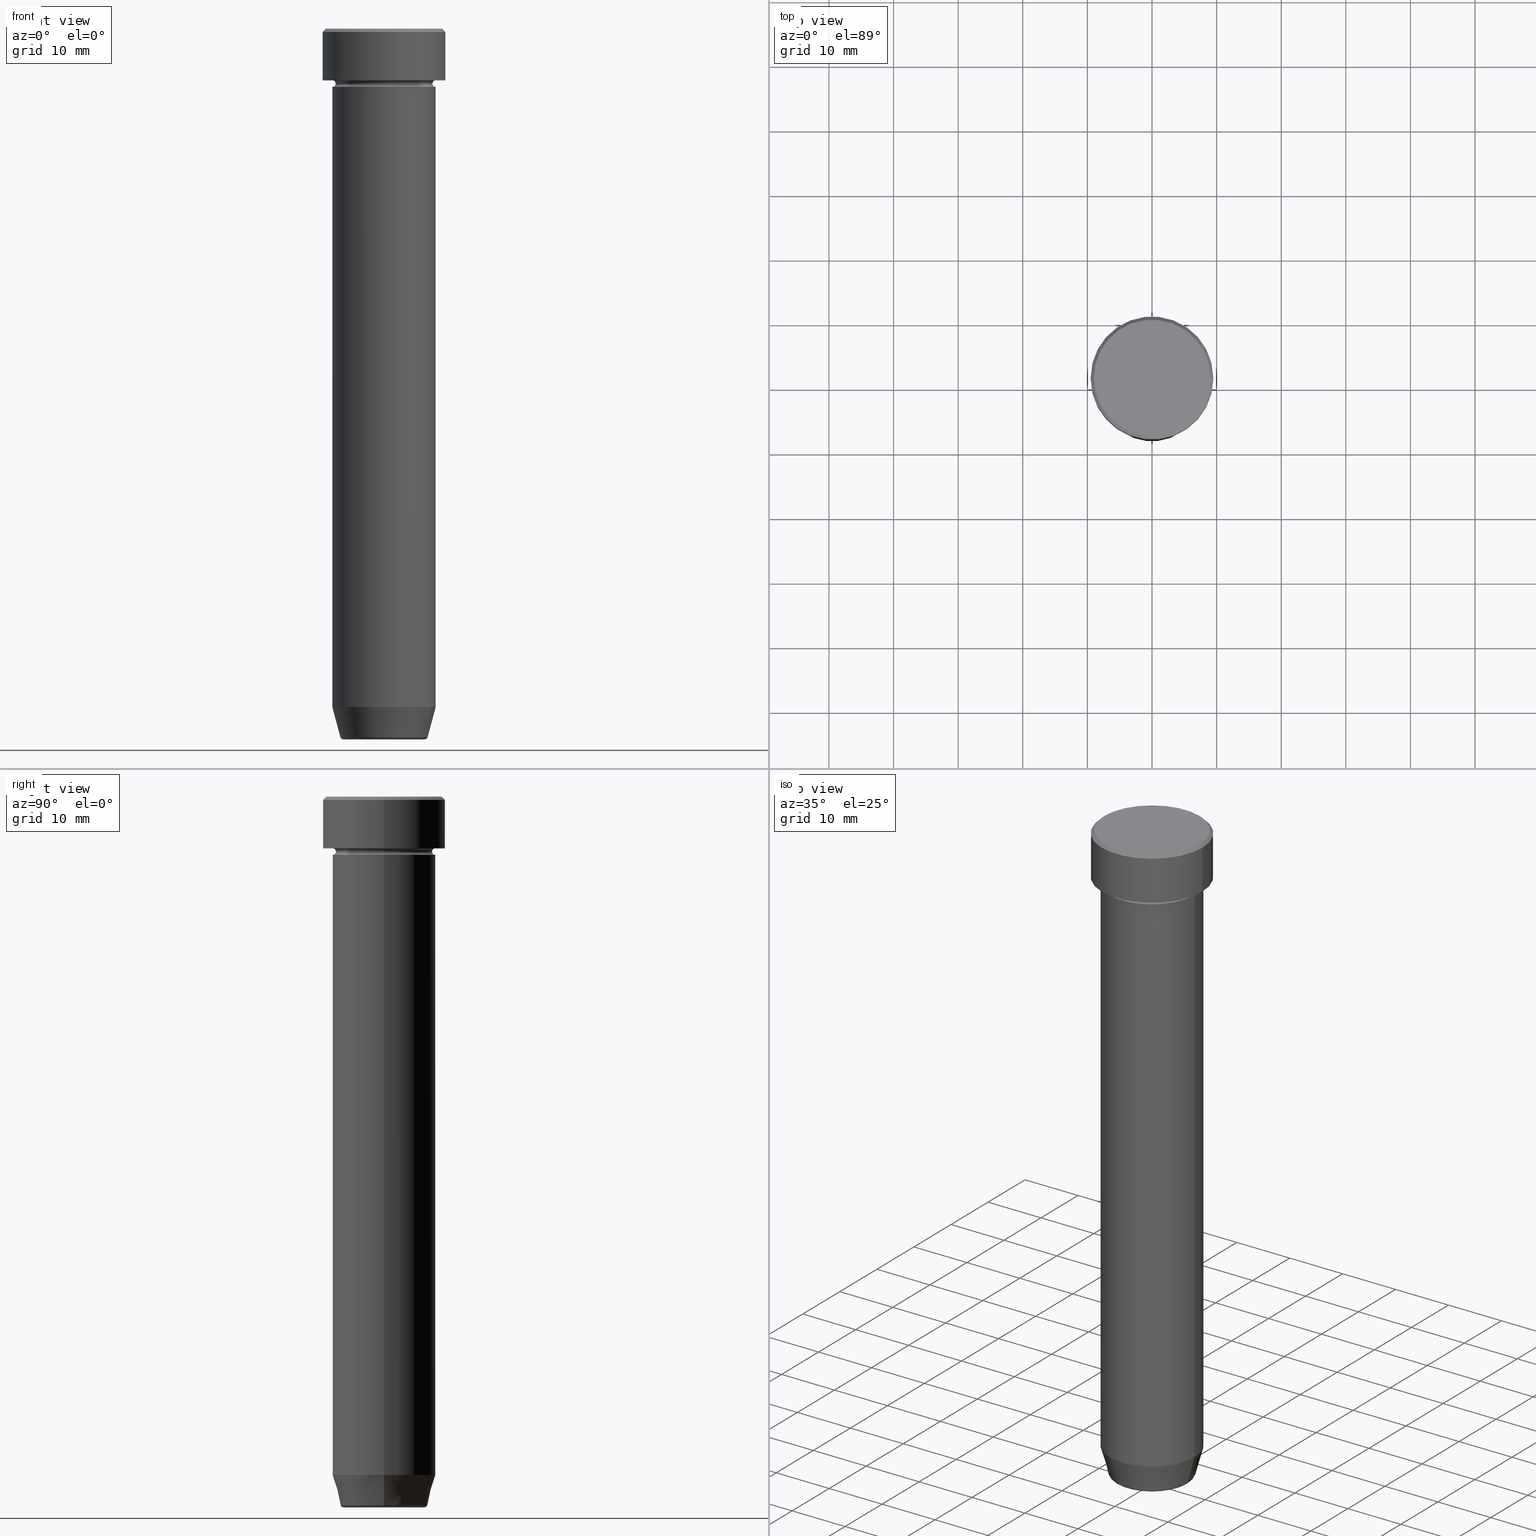
[diagram: canonical four-view strip — front | top / right | iso, engineering-drawing reading convention]
A machine part, canonical four-view strip (front | top / right | iso — engineering-drawing reading convention). The complete STEP part file that produces these views, byte-faithful:
ISO-10303-21;
HEADER;
FILE_DESCRIPTION (( 'STEP AP203' ),
    '1' );
FILE_NAME ('f5d0.STEP',
    '2024-01-02T22:11:47',
    ( '' ),
    ( '' ),
    'SwSTEP 2.0',
    'SolidWorks 2019',
    '' );
FILE_SCHEMA (( 'CONFIG_CONTROL_DESIGN' ));
ENDSEC;

DATA;
#1 = DIRECTION ( 'NONE',  ( -0.000000000000000000, -0.000000000000000000, 1.000000000000000000 ) ) ;
#2 = EDGE_CURVE ( 'NONE', #389, #199, #178, .T. ) ;
#3 = CALENDAR_DATE ( 2024, 2, 1 ) ;
#4 = DIRECTION ( 'NONE',  ( 1.000000000000000000, 0.000000000000000000, 0.000000000000000000 ) ) ;
#5 = AXIS2_PLACEMENT_3D ( 'NONE', #343, #31, #126 ) ;
#6 = AXIS2_PLACEMENT_3D ( 'NONE', #332, #390, #245 ) ;
#7 = APPROVAL_DATE_TIME ( #460, #14 ) ;
#8 = CC_DESIGN_PERSON_AND_ORGANIZATION_ASSIGNMENT ( #270, #493, ( #402 ) ) ;
#9 = ORIENTED_EDGE ( 'NONE', *, *, #324, .F. ) ;
#10 = ORIENTED_EDGE ( 'NONE', *, *, #515, .T. ) ;
#11 = FACE_OUTER_BOUND ( 'NONE', #244, .T. ) ;
#12 = VERTEX_POINT ( 'NONE', #581 ) ;
#13 = DIRECTION ( 'NONE',  ( 1.000000000000000000, 0.000000000000000000, 0.000000000000000000 ) ) ;
#14 = APPROVAL ( #132, 'NEUR�EN�' ) ;
#15 = CIRCLE ( 'NONE', #95, 0.5000000000000004441 ) ;
#16 = ORIENTED_EDGE ( 'NONE', *, *, #231, .F. ) ;
#17 = DIRECTION ( 'NONE',  ( 1.000000000000000000, 0.000000000000000000, 0.000000000000000000 ) ) ;
#18 = ORIENTED_EDGE ( 'NONE', *, *, #94, .F. ) ;
#19 = PLANE ( 'NONE',  #304 ) ;
#20 = ORIENTED_EDGE ( 'NONE', *, *, #449, .F. ) ;
#21 = ADVANCED_FACE ( 'NONE', ( #130 ), #594, .T. ) ;
#22 = DIRECTION ( 'NONE',  ( -1.224646799147353207E-16, 1.000000000000000000, 0.000000000000000000 ) ) ;
#23 = CARTESIAN_POINT ( 'NONE',  ( 0.000000000000000000, 0.000000000000000000, -22.00000000000000000 ) ) ;
#24 = VECTOR ( 'NONE', #391, 1000.000000000000000 ) ;
#25 = PRODUCT_DEFINITION ( 'NEZN�M�', '', #115, #348 ) ;
#26 = AXIS2_PLACEMENT_3D ( 'NONE', #548, #137, #415 ) ;
#27 = CARTESIAN_POINT ( 'NONE',  ( 9.500000000000000000, 0.000000000000000000, -0.4999999999999968914 ) ) ;
#28 = ORIENTED_EDGE ( 'NONE', *, *, #579, .T. ) ;
#29 = EDGE_CURVE ( 'NONE', #328, #155, #544, .T. ) ;
#30 = VERTEX_POINT ( 'NONE', #27 ) ;
#31 = DIRECTION ( 'NONE',  ( -0.000000000000000000, -0.000000000000000000, 1.000000000000000000 ) ) ;
#32 = APPROVAL ( #591, 'NEUR�EN�' ) ;
#33 = CARTESIAN_POINT ( 'NONE',  ( 0.000000000000000000, 0.000000000000000000, -8.500000000000000000 ) ) ;
#34 = CONICAL_SURFACE ( 'NONE', #358, 9.000000000000001776, 0.7853981633974501664 ) ;
#35 = CARTESIAN_POINT ( 'NONE',  ( 0.000000000000000000, 9.500000000000000000, -8.000000000000000000 ) ) ;
#36 = TOROIDAL_SURFACE ( 'NONE', #84, 8.000000000000000000, 0.5000000000000000000 ) ;
#37 = PRODUCT_DEFINITION_SHAPE ( 'NONE', 'NONE',  #25 ) ;
#38 = EDGE_CURVE ( 'NONE', #12, #199, #73, .T. ) ;
#39 = PERSON_AND_ORGANIZATION_ROLE ( 'creator' ) ;
#40 = DIRECTION ( 'NONE',  ( -0.000000000000000000, -1.000000000000000000, -0.000000000000000000 ) ) ;
#41 = DIRECTION ( 'NONE',  ( 0.000000000000000000, 0.000000000000000000, 1.000000000000000000 ) ) ;
#42 = DIRECTION ( 'NONE',  ( 1.000000000000000000, 0.000000000000000000, 0.000000000000000000 ) ) ;
#43 = DIRECTION ( 'NONE',  ( -0.000000000000000000, -0.000000000000000000, 1.000000000000000000 ) ) ;
#44 = CARTESIAN_POINT ( 'NONE',  ( 0.000000000000000000, 0.000000000000000000, -8.500000000000000000 ) ) ;
#45 = CARTESIAN_POINT ( 'NONE',  ( 0.000000000000000000, 0.000000000000000000, -9.000000000000001776 ) ) ;
#46 = AXIS2_PLACEMENT_3D ( 'NONE', #598, #504, #275 ) ;
#47 = DIRECTION ( 'NONE',  ( -0.7071067811865489050, 0.000000000000000000, -0.7071067811865462405 ) ) ;
#48 = AXIS2_PLACEMENT_3D ( 'NONE', #248, #109, #520 ) ;
#49 = DIRECTION ( 'NONE',  ( -0.000000000000000000, -0.000000000000000000, 1.000000000000000000 ) ) ;
#50 = ADVANCED_FACE ( 'NONE', ( #485 ), #34, .T. ) ;
#51 = CALENDAR_DATE ( 2024, 2, 1 ) ;
#52 = CARTESIAN_POINT ( 'NONE',  ( -6.276590543854900339, 7.982336011935116411E-16, -109.9999999999999858 ) ) ;
#53 = VERTEX_POINT ( 'NONE', #300 ) ;
#54 = APPROVAL_ROLE ( '' ) ;
#55 = DIRECTION ( 'NONE',  ( 0.000000000000000000, 0.000000000000000000, -1.000000000000000000 ) ) ;
#56 = EDGE_LOOP ( 'NONE', ( #228, #165, #569, #492 ) ) ;
#57 = AXIS2_PLACEMENT_3D ( 'NONE', #533, #397, #349 ) ;
#58 = PERSON_AND_ORGANIZATION ( #379, #75 ) ;
#59 = EDGE_LOOP ( 'NONE', ( #28, #476, #576, #127 ) ) ;
#60 = CARTESIAN_POINT ( 'NONE',  ( 7.500000000000000000, 0.000000000000000000, -8.500000000000000000 ) ) ;
#61 = EDGE_CURVE ( 'NONE', #155, #328, #192, .T. ) ;
#62 = ORIENTED_EDGE ( 'NONE', *, *, #373, .T. ) ;
#63 = DIRECTION ( 'NONE',  ( -0.000000000000000000, -0.000000000000000000, 1.000000000000000000 ) ) ;
#64 = ORIENTED_EDGE ( 'NONE', *, *, #561, .F. ) ;
#65 = CARTESIAN_POINT ( 'NONE',  ( 0.000000000000000000, 0.000000000000000000, -0.4999999999999968914 ) ) ;
#66 = AXIS2_PLACEMENT_3D ( 'NONE', #65, #392, #17 ) ;
#67 = ORIENTED_EDGE ( 'NONE', *, *, #231, .T. ) ;
#68 = LINE ( 'NONE', #166, #242 ) ;
#69 = EDGE_CURVE ( 'NONE', #472, #160, #399, .T. ) ;
#70 = EDGE_LOOP ( 'NONE', ( #490, #212 ) ) ;
#71 = PLANE ( 'NONE',  #508 ) ;
#72 = DIRECTION ( 'NONE',  ( -1.000000000000000000, 0.000000000000000000, 0.000000000000000000 ) ) ;
#73 = CIRCLE ( 'NONE', #465, 8.000000000000000000 ) ;
#74 = AXIS2_PLACEMENT_3D ( 'NONE', #565, #63, #298 ) ;
#75 = ORGANIZATION ( 'NEUR�EN�', 'NEUR�EN�', '' ) ;
#76 = CARTESIAN_POINT ( 'NONE',  ( 6.660254037844381081, 0.000000000000000000, -109.9999999999999858 ) ) ;
#77 = ORIENTED_EDGE ( 'NONE', *, *, #406, .T. ) ;
#78 = ORIENTED_EDGE ( 'NONE', *, *, #449, .T. ) ;
#79 = FACE_BOUND ( 'NONE', #219, .T. ) ;
#80 = DIRECTION ( 'NONE',  ( 1.000000000000000000, 0.000000000000000000, 0.000000000000000000 ) ) ;
#81 = ORIENTED_EDGE ( 'NONE', *, *, #484, .T. ) ;
#82 = AXIS2_PLACEMENT_3D ( 'NONE', #455, #83, #230 ) ;
#83 = DIRECTION ( 'NONE',  ( 0.000000000000000000, -1.000000000000000000, 0.000000000000000000 ) ) ;
#84 = AXIS2_PLACEMENT_3D ( 'NONE', #550, #55, #97 ) ;
#85 = ORIENTED_EDGE ( 'NONE', *, *, #422, .F. ) ;
#86 = ADVANCED_FACE ( 'NONE', ( #217 ), #487, .T. ) ;
#87 = APPLICATION_PROTOCOL_DEFINITION ( 'international standard', 'config_control_design', 1994, #143 ) ;
#88 = DIRECTION ( 'NONE',  ( -0.000000000000000000, -0.000000000000000000, 1.000000000000000000 ) ) ;
#89 = CARTESIAN_POINT ( 'NONE',  ( -8.000000000000000000, 9.797174393178825657E-16, -22.00000000000000000 ) ) ;
#90 = CARTESIAN_POINT ( 'NONE',  ( 9.500000000000000000, 0.000000000000000000, -8.000000000000000000 ) ) ;
#91 = DIRECTION ( 'NONE',  ( -0.000000000000000000, -0.000000000000000000, 1.000000000000000000 ) ) ;
#92 = DIRECTION ( 'NONE',  ( -0.000000000000000000, -0.000000000000000000, 1.000000000000000000 ) ) ;
#93 = MANIFOLD_SOLID_BREP ( 'Zkosen�1', #350 ) ;
#94 = EDGE_CURVE ( 'NONE', #155, #53, #129, .T. ) ;
#95 = AXIS2_PLACEMENT_3D ( 'NONE', #227, #321, #140 ) ;
#96 = CIRCLE ( 'NONE', #66, 9.500000000000000000 ) ;
#97 = DIRECTION ( 'NONE',  ( -1.000000000000000000, 0.000000000000000000, 0.000000000000000000 ) ) ;
#98 = MANIFOLD_SOLID_BREP ( 'Zaoblit4', #322 ) ;
#99 = CARTESIAN_POINT ( 'NONE',  ( -6.660254037844381081, 8.156458788954356817E-16, -109.9999999999999858 ) ) ;
#100 = DATE_TIME_ROLE ( 'classification_date' ) ;
#101 = CARTESIAN_POINT ( 'NONE',  ( 6.276590543854900339, 0.000000000000000000, -109.9999999999999858 ) ) ;
#102 = ORIENTED_EDGE ( 'NONE', *, *, #561, .T. ) ;
#103 = ORIENTED_EDGE ( 'NONE', *, *, #38, .T. ) ;
#104 = VECTOR ( 'NONE', #307, 1000.000000000000114 ) ;
#105 = AXIS2_PLACEMENT_3D ( 'NONE', #599, #595, #148 ) ;
#106 = ORIENTED_EDGE ( 'NONE', *, *, #515, .F. ) ;
#107 = FACE_OUTER_BOUND ( 'NONE', #482, .T. ) ;
#108 = ORIENTED_EDGE ( 'NONE', *, *, #388, .F. ) ;
#109 = DIRECTION ( 'NONE',  ( 0.000000000000000000, 0.000000000000000000, -1.000000000000000000 ) ) ;
#110 = EDGE_CURVE ( 'NONE', #204, #395, #268, .T. ) ;
#111 = ORIENTED_EDGE ( 'NONE', *, *, #579, .F. ) ;
#112 = CARTESIAN_POINT ( 'NONE',  ( 0.000000000000000000, 0.000000000000000000, -22.00000000000000000 ) ) ;
#113 = AXIS2_PLACEMENT_3D ( 'NONE', #352, #577, #539 ) ;
#114 = AXIS2_PLACEMENT_3D ( 'NONE', #413, #179, #546 ) ;
#115 = PRODUCT_DEFINITION_FORMATION_WITH_SPECIFIED_SOURCE ( 'LIBOVOLN�', '', #402, .NOT_KNOWN. ) ;
#116 = ORIENTED_EDGE ( 'NONE', *, *, #433, .T. ) ;
#117 = DIRECTION ( 'NONE',  ( 0.000000000000000000, -0.000000000000000000, 1.000000000000000000 ) ) ;
#118 = CC_DESIGN_PERSON_AND_ORGANIZATION_ASSIGNMENT ( #58, #554, ( #314 ) ) ;
#119 = ORIENTED_EDGE ( 'NONE', *, *, #422, .T. ) ;
#120 = EDGE_LOOP ( 'NONE', ( #473, #294, #289, #480 ) ) ;
#121 = ORIENTED_EDGE ( 'NONE', *, *, #225, .F. ) ;
#122 = CARTESIAN_POINT ( 'NONE',  ( 0.000000000000000000, 0.000000000000000000, -109.6294095225512564 ) ) ;
#123 = AXIS2_PLACEMENT_3D ( 'NONE', #271, #235, #42 ) ;
#124 = VECTOR ( 'NONE', #47, 999.9999999999998863 ) ;
#125 = UNCERTAINTY_MEASURE_WITH_UNIT (LENGTH_MEASURE( 1.000000000000000082E-05 ), #138, 'distance_accuracy_value', 'NONE');
#126 = DIRECTION ( 'NONE',  ( 1.000000000000000000, 0.000000000000000000, 0.000000000000000000 ) ) ;
#127 = ORIENTED_EDGE ( 'NONE', *, *, #211, .F. ) ;
#128 = CARTESIAN_POINT ( 'NONE',  ( 0.000000000000000000, 0.000000000000000000, -104.9999999999999858 ) ) ;
#129 = LINE ( 'NONE', #76, #104 ) ;
#130 = FACE_OUTER_BOUND ( 'NONE', #288, .T. ) ;
#131 = EDGE_CURVE ( 'NONE', #173, #558, #537, .T. ) ;
#132 = APPROVAL_STATUS ( 'not_yet_approved' ) ;
#133 = AXIS2_PLACEMENT_3D ( 'NONE', #491, #216, #264 ) ;
#134 = DIRECTION ( 'NONE',  ( -0.000000000000000000, -0.000000000000000000, 1.000000000000000000 ) ) ;
#135 = TOROIDAL_SURFACE ( 'NONE', #177, 8.000000000000000000, 0.5000000000000000000 ) ;
#136 = LOCAL_TIME ( 23, 11, 47.00000000000000000, #557 ) ;
#137 = DIRECTION ( 'NONE',  ( -0.000000000000000000, -0.000000000000000000, 1.000000000000000000 ) ) ;
#138 =( LENGTH_UNIT ( ) NAMED_UNIT ( * ) SI_UNIT ( .MILLI., .METRE. ) );
#139 = DIRECTION ( 'NONE',  ( 0.000000000000000000, 0.000000000000000000, -1.000000000000000000 ) ) ;
#140 = DIRECTION ( 'NONE',  ( -1.000000000000000000, 1.224646799147353454E-16, 0.000000000000000000 ) ) ;
#141 = ADVANCED_FACE ( 'NONE', ( #79, #446 ), #587, .T. ) ;
#142 = DIRECTION ( 'NONE',  ( 1.000000000000000000, 0.000000000000000000, 0.000000000000000000 ) ) ;
#143 = APPLICATION_CONTEXT ( 'configuration controlled 3d designs of mechanical parts and assemblies' ) ;
#144 = FACE_OUTER_BOUND ( 'NONE', #385, .T. ) ;
#145 = PERSON_AND_ORGANIZATION_ROLE ( 'design_supplier' ) ;
#146 = CIRCLE ( 'NONE', #234, 0.5000000000000004441 ) ;
#147 = AXIS2_PLACEMENT_3D ( 'NONE', #530, #428, #337 ) ;
#148 = DIRECTION ( 'NONE',  ( 1.000000000000000000, 0.000000000000000000, 0.000000000000000000 ) ) ;
#149 = APPROVAL_PERSON_ORGANIZATION ( #274, #32, #360 ) ;
#150 = DIRECTION ( 'NONE',  ( 1.000000000000000000, 0.000000000000000000, 0.000000000000000000 ) ) ;
#151 = COORDINATED_UNIVERSAL_TIME_OFFSET ( 1, 0, .AHEAD. ) ;
#152 = ORIENTED_EDGE ( 'NONE', *, *, #220, .T. ) ;
#153 = EDGE_CURVE ( 'NONE', #395, #204, #447, .T. ) ;
#154 = APPLICATION_CONTEXT ( 'configuration controlled 3d designs of mechanical parts and assemblies' ) ;
#155 = VERTEX_POINT ( 'NONE', #495 ) ;
#156 = DIRECTION ( 'NONE',  ( -0.000000000000000000, -0.000000000000000000, 1.000000000000000000 ) ) ;
#157 = AXIS2_PLACEMENT_3D ( 'NONE', #122, #442, #439 ) ;
#158 = CIRCLE ( 'NONE', #105, 8.000000000000000000 ) ;
#159 = ORIENTED_EDGE ( 'NONE', *, *, #502, .F. ) ;
#160 = VERTEX_POINT ( 'NONE', #257 ) ;
#161 = CARTESIAN_POINT ( 'NONE',  ( -9.500000000000000000, 1.163414459189985485E-15, -8.000000000000000000 ) ) ;
#162 = EDGE_CURVE ( 'NONE', #472, #204, #146, .T. ) ;
#163 = ORIENTED_EDGE ( 'NONE', *, *, #110, .T. ) ;
#164 = PLANE ( 'NONE',  #48 ) ;
#165 = ORIENTED_EDGE ( 'NONE', *, *, #2, .T. ) ;
#166 = CARTESIAN_POINT ( 'NONE',  ( 8.000000000000000000, 0.000000000000000000, 0.000000000000000000 ) ) ;
#167 = AXIS2_PLACEMENT_3D ( 'NONE', #543, #134, #459 ) ;
#168 = AXIS2_PLACEMENT_3D ( 'NONE', #556, #91, #150 ) ;
#169 = LOCAL_TIME ( 23, 11, 47.00000000000000000, #151 ) ;
#170 = CARTESIAN_POINT ( 'NONE',  ( 0.000000000000000000, 0.000000000000000000, -8.500000000000000000 ) ) ;
#171 = FACE_OUTER_BOUND ( 'NONE', #578, .T. ) ;
#172 = EDGE_CURVE ( 'NONE', #30, #387, #562, .T. ) ;
#173 = VERTEX_POINT ( 'NONE', #589 ) ;
#174 = DIRECTION ( 'NONE',  ( 1.000000000000000000, 0.000000000000000000, 0.000000000000000000 ) ) ;
#175 = ORIENTED_EDGE ( 'NONE', *, *, #162, .F. ) ;
#176 = AXIS2_PLACEMENT_3D ( 'NONE', #461, #1, #511 ) ;
#177 = AXIS2_PLACEMENT_3D ( 'NONE', #316, #410, #501 ) ;
#178 = LINE ( 'NONE', #541, #24 ) ;
#179 = DIRECTION ( 'NONE',  ( -0.000000000000000000, -0.000000000000000000, 1.000000000000000000 ) ) ;
#180 = CARTESIAN_POINT ( 'NONE',  ( 0.000000000000000000, 0.000000000000000000, -8.000000000000000000 ) ) ;
#181 = DATE_AND_TIME ( #588, #423 ) ;
#182 = CARTESIAN_POINT ( 'NONE',  ( -9.500000000000000000, 1.163414459189985485E-15, 0.000000000000000000 ) ) ;
#183 = CARTESIAN_POINT ( 'NONE',  ( -9.500000000000000000, 1.163414459189985485E-15, -0.4999999999999968914 ) ) ;
#184 = DIRECTION ( 'NONE',  ( 0.000000000000000000, -1.000000000000000000, 0.000000000000000000 ) ) ;
#185 = CARTESIAN_POINT ( 'NONE',  ( -8.000000000000000000, 9.797174393178825657E-16, -22.00000000000000000 ) ) ;
#186 = DIRECTION ( 'NONE',  ( 1.000000000000000000, 0.000000000000000000, 0.000000000000000000 ) ) ;
#187 = EDGE_CURVE ( 'NONE', #427, #387, #547, .T. ) ;
#188 = CARTESIAN_POINT ( 'NONE',  ( -8.000000000000000000, 0.000000000000000000, -8.500000000000000000 ) ) ;
#189 = DIRECTION ( 'NONE',  ( 0.000000000000000000, 0.000000000000000000, -1.000000000000000000 ) ) ;
#190 = CYLINDRICAL_SURFACE ( 'NONE', #430, 9.500000000000000000 ) ;
#191 = COORDINATED_UNIVERSAL_TIME_OFFSET ( 1, 0, .AHEAD. ) ;
#192 = CIRCLE ( 'NONE', #133, 6.759553456999436882 ) ;
#193 = CARTESIAN_POINT ( 'NONE',  ( -6.759553456999437770, 9.037619948979306213E-16, -109.6294095225512564 ) ) ;
#194 = SECURITY_CLASSIFICATION_LEVEL ( 'unclassified' ) ;
#195 = EDGE_CURVE ( 'NONE', #559, #558, #303, .T. ) ;
#196 = EDGE_LOOP ( 'NONE', ( #256, #262, #250, #18 ) ) ;
#197 = ORIENTED_EDGE ( 'NONE', *, *, #329, .F. ) ;
#198 = CARTESIAN_POINT ( 'NONE',  ( 0.000000000000000000, 0.000000000000000000, 0.000000000000000000 ) ) ;
#199 = VERTEX_POINT ( 'NONE', #185 ) ;
#200 = CIRCLE ( 'NONE', #123, 9.500000000000000000 ) ;
#201 = DIRECTION ( 'NONE',  ( 1.000000000000000000, 0.000000000000000000, 0.000000000000000000 ) ) ;
#202 = CIRCLE ( 'NONE', #369, 9.500000000000000000 ) ;
#203 = EDGE_CURVE ( 'NONE', #207, #30, #500, .T. ) ;
#204 = VERTEX_POINT ( 'NONE', #452 ) ;
#205 = DIRECTION ( 'NONE',  ( -0.000000000000000000, -0.000000000000000000, 1.000000000000000000 ) ) ;
#206 = CC_DESIGN_PERSON_AND_ORGANIZATION_ASSIGNMENT ( #238, #418, ( #115 ) ) ;
#207 = VERTEX_POINT ( 'NONE', #90 ) ;
#208 = DIRECTION ( 'NONE',  ( 1.000000000000000000, 0.000000000000000000, 0.000000000000000000 ) ) ;
#209 = ORIENTED_EDGE ( 'NONE', *, *, #220, .F. ) ;
#210 = ORIENTED_EDGE ( 'NONE', *, *, #29, .T. ) ;
#211 = EDGE_CURVE ( 'NONE', #160, #395, #551, .T. ) ;
#212 = ORIENTED_EDGE ( 'NONE', *, *, #329, .T. ) ;
#213 = LINE ( 'NONE', #386, #467 ) ;
#214 = ORIENTED_EDGE ( 'NONE', *, *, #61, .F. ) ;
#215 = AXIS2_PLACEMENT_3D ( 'NONE', #568, #117, #201 ) ;
#216 = DIRECTION ( 'NONE',  ( -0.000000000000000000, -0.000000000000000000, 1.000000000000000000 ) ) ;
#217 = FACE_OUTER_BOUND ( 'NONE', #120, .T. ) ;
#218 = ORIENTED_EDGE ( 'NONE', *, *, #69, .T. ) ;
#219 = EDGE_LOOP ( 'NONE', ( #584, #163 ) ) ;
#220 = EDGE_CURVE ( 'NONE', #247, #306, #280, .T. ) ;
#221 = VECTOR ( 'NONE', #356, 1000.000000000000000 ) ;
#222 = CIRCLE ( 'NONE', #323, 0.5000000000000004441 ) ;
#223 = CC_DESIGN_APPROVAL ( #14, ( #115 ) ) ;
#224 = DIRECTION ( 'NONE',  ( 0.000000000000000000, 0.000000000000000000, -1.000000000000000000 ) ) ;
#225 = EDGE_CURVE ( 'NONE', #472, #558, #367, .T. ) ;
#226 =( NAMED_UNIT ( * ) SI_UNIT ( $, .STERADIAN. ) SOLID_ANGLE_UNIT ( ) );
#227 = CARTESIAN_POINT ( 'NONE',  ( -8.000000000000000000, 9.797174393178825657E-16, -8.500000000000000000 ) ) ;
#228 = ORIENTED_EDGE ( 'NONE', *, *, #347, .T. ) ;
#229 = APPLICATION_PROTOCOL_DEFINITION ( 'international standard', 'config_control_design', 1994, #154 ) ;
#230 = DIRECTION ( 'NONE',  ( 0.000000000000000000, 0.000000000000000000, -1.000000000000000000 ) ) ;
#231 = EDGE_CURVE ( 'NONE', #207, #427, #200, .T. ) ;
#232 = DIRECTION ( 'NONE',  ( -1.000000000000000000, 0.000000000000000000, 0.000000000000000000 ) ) ;
#233 = FACE_OUTER_BOUND ( 'NONE', #56, .T. ) ;
#234 = AXIS2_PLACEMENT_3D ( 'NONE', #436, #22, #414 ) ;
#235 = DIRECTION ( 'NONE',  ( -0.000000000000000000, -0.000000000000000000, 1.000000000000000000 ) ) ;
#236 = DIRECTION ( 'NONE',  ( 1.224646799147353207E-16, 1.000000000000000000, 0.000000000000000000 ) ) ;
#237 = DIRECTION ( 'NONE',  ( 0.000000000000000000, 0.000000000000000000, -1.000000000000000000 ) ) ;
#238 = PERSON_AND_ORGANIZATION ( #379, #75 ) ;
#239 = CARTESIAN_POINT ( 'NONE',  ( 0.000000000000000000, 0.000000000000000000, 0.000000000000000000 ) ) ;
#240 = ADVANCED_FACE ( 'NONE', ( #409 ), #536, .T. ) ;
#241 = CIRCLE ( 'NONE', #176, 8.000000000000000000 ) ;
#242 = VECTOR ( 'NONE', #526, 1000.000000000000000 ) ;
#243 = CARTESIAN_POINT ( 'NONE',  ( -8.000000000000000000, 0.000000000000000000, -8.000000000000000000 ) ) ;
#244 = EDGE_LOOP ( 'NONE', ( #529, #81, #263, #272 ) ) ;
#245 = DIRECTION ( 'NONE',  ( 1.000000000000000000, 0.000000000000000000, 0.000000000000000000 ) ) ;
#246 = EDGE_CURVE ( 'NONE', #160, #559, #15, .T. ) ;
#247 = VERTEX_POINT ( 'NONE', #101 ) ;
#248 = CARTESIAN_POINT ( 'NONE',  ( 0.000000000000000000, 8.000000000000000000, -22.00000000000000000 ) ) ;
#249 = EDGE_LOOP ( 'NONE', ( #103, #78 ) ) ;
#250 = ORIENTED_EDGE ( 'NONE', *, *, #347, .F. ) ;
#251 = DIRECTION ( 'NONE',  ( -0.000000000000000000, -0.000000000000000000, 1.000000000000000000 ) ) ;
#252 = VECTOR ( 'NONE', #437, 999.9999999999998863 ) ;
#253 = ORIENTED_EDGE ( 'NONE', *, *, #273, .T. ) ;
#254 = EDGE_LOOP ( 'NONE', ( #67, #434, #563, #384 ) ) ;
#255 = FACE_OUTER_BOUND ( 'NONE', #70, .T. ) ;
#256 = ORIENTED_EDGE ( 'NONE', *, *, #61, .T. ) ;
#257 = CARTESIAN_POINT ( 'NONE',  ( -7.500000000000000000, 9.491012693391985815E-16, -8.500000000000000000 ) ) ;
#258 = DIRECTION ( 'NONE',  ( 1.000000000000000000, 0.000000000000000000, 0.000000000000000000 ) ) ;
#259 = DIRECTION ( 'NONE',  ( 1.000000000000000000, 0.000000000000000000, 0.000000000000000000 ) ) ;
#260 = AXIS2_PLACEMENT_3D ( 'NONE', #45, #592, #315 ) ;
#261 = AXIS2_PLACEMENT_3D ( 'NONE', #128, #156, #353 ) ;
#262 = ORIENTED_EDGE ( 'NONE', *, *, #284, .T. ) ;
#263 = ORIENTED_EDGE ( 'NONE', *, *, #273, .F. ) ;
#264 = DIRECTION ( 'NONE',  ( -1.000000000000000000, 0.000000000000000000, 0.000000000000000000 ) ) ;
#265 = ADVANCED_FACE ( 'NONE', ( #457 ), #496, .T. ) ;
#266 = CALENDAR_DATE ( 2024, 2, 1 ) ;
#267 = DIRECTION ( 'NONE',  ( -0.000000000000000000, -0.000000000000000000, 1.000000000000000000 ) ) ;
#268 = CIRCLE ( 'NONE', #57, 8.000000000000000000 ) ;
#269 =( GEOMETRIC_REPRESENTATION_CONTEXT ( 3 ) GLOBAL_UNCERTAINTY_ASSIGNED_CONTEXT ( ( #125 ) ) GLOBAL_UNIT_ASSIGNED_CONTEXT ( ( #138, #454, #226 ) ) REPRESENTATION_CONTEXT ( 'NONE', 'WORKASPACE' ) );
#270 = PERSON_AND_ORGANIZATION ( #379, #75 ) ;
#271 = CARTESIAN_POINT ( 'NONE',  ( 0.000000000000000000, 0.000000000000000000, -8.000000000000000000 ) ) ;
#272 = ORIENTED_EDGE ( 'NONE', *, *, #131, .F. ) ;
#273 = EDGE_CURVE ( 'NONE', #558, #559, #241, .T. ) ;
#274 = PERSON_AND_ORGANIZATION ( #379, #75 ) ;
#275 = DIRECTION ( 'NONE',  ( 1.000000000000000000, 0.000000000000000000, 0.000000000000000000 ) ) ;
#276 = CARTESIAN_POINT ( 'NONE',  ( 9.000000000000001776, 1.132798289211301698E-15, 0.000000000000000000 ) ) ;
#277 = DIRECTION ( 'NONE',  ( -0.000000000000000000, -0.000000000000000000, 1.000000000000000000 ) ) ;
#278 = DIRECTION ( 'NONE',  ( 1.000000000000000000, 0.000000000000000000, 0.000000000000000000 ) ) ;
#279 = CARTESIAN_POINT ( 'NONE',  ( 0.000000000000000000, 0.000000000000000000, 0.000000000000000000 ) ) ;
#280 = CIRCLE ( 'NONE', #377, 6.276590543854900339 ) ;
#281 = AXIS2_PLACEMENT_3D ( 'NONE', #112, #335, #483 ) ;
#282 = CARTESIAN_POINT ( 'NONE',  ( 0.000000000000000000, 0.000000000000000000, -8.000000000000000000 ) ) ;
#283 = LINE ( 'NONE', #99, #571 ) ;
#284 = EDGE_CURVE ( 'NONE', #328, #389, #283, .T. ) ;
#285 = APPROVAL_DATE_TIME ( #512, #345 ) ;
#286 = CARTESIAN_POINT ( 'NONE',  ( -6.276590543854900339, 7.686606519090449012E-16, -109.4999999999999858 ) ) ;
#287 = CONICAL_SURFACE ( 'NONE', #6, 6.660254037844381081, 0.2617993877991502405 ) ;
#288 = EDGE_LOOP ( 'NONE', ( #85, #375, #214, #516 ) ) ;
#289 = ORIENTED_EDGE ( 'NONE', *, *, #203, .T. ) ;
#290 = CYLINDRICAL_SURFACE ( 'NONE', #74, 8.000000000000000000 ) ;
#291 = ORIENTED_EDGE ( 'NONE', *, *, #585, .T. ) ;
#292 = EDGE_LOOP ( 'NONE', ( #9, #299 ) ) ;
#293 = DIRECTION ( 'NONE',  ( 0.000000000000000000, 0.000000000000000000, -1.000000000000000000 ) ) ;
#294 = ORIENTED_EDGE ( 'NONE', *, *, #416, .T. ) ;
#295 = FACE_OUTER_BOUND ( 'NONE', #249, .T. ) ;
#296 = AXIS2_PLACEMENT_3D ( 'NONE', #239, #453, #417 ) ;
#297 = EDGE_LOOP ( 'NONE', ( #510, #102, #116, #20 ) ) ;
#298 = DIRECTION ( 'NONE',  ( 1.000000000000000000, 0.000000000000000000, 0.000000000000000000 ) ) ;
#299 = ORIENTED_EDGE ( 'NONE', *, *, #406, .F. ) ;
#300 = CARTESIAN_POINT ( 'NONE',  ( 8.000000000000000000, 0.000000000000000000, -104.9999999999999858 ) ) ;
#301 = ADVANCED_BREP_SHAPE_REPRESENTATION ( 'f5d0', ( #93, #98, #383 ), #269 ) ;
#302 = CARTESIAN_POINT ( 'NONE',  ( 0.000000000000000000, 0.000000000000000000, 0.000000000000000000 ) ) ;
#303 = CIRCLE ( 'NONE', #260, 8.000000000000000000 ) ;
#304 = AXIS2_PLACEMENT_3D ( 'NONE', #523, #474, #208 ) ;
#305 = CARTESIAN_POINT ( 'NONE',  ( 0.000000000000000000, 0.000000000000000000, -22.00000000000000000 ) ) ;
#306 = VERTEX_POINT ( 'NONE', #52 ) ;
#307 = DIRECTION ( 'NONE',  ( 0.2588190451025214611, 0.000000000000000000, 0.9659258262890679791 ) ) ;
#308 = COORDINATED_UNIVERSAL_TIME_OFFSET ( 1, 0, .AHEAD. ) ;
#309 = DIRECTION ( 'NONE',  ( -1.000000000000000000, 0.000000000000000000, 0.000000000000000000 ) ) ;
#310 = ORIENTED_EDGE ( 'NONE', *, *, #521, .F. ) ;
#311 = ADVANCED_FACE ( 'NONE', ( #506 ), #596, .T. ) ;
#312 = AXIS2_PLACEMENT_3D ( 'NONE', #470, #560, #258 ) ;
#313 = DIRECTION ( 'NONE',  ( 1.000000000000000000, 0.000000000000000000, 0.000000000000000000 ) ) ;
#314 = SECURITY_CLASSIFICATION ( '', '', #194 ) ;
#315 = DIRECTION ( 'NONE',  ( 1.000000000000000000, 0.000000000000000000, 0.000000000000000000 ) ) ;
#316 = CARTESIAN_POINT ( 'NONE',  ( 0.000000000000000000, 0.000000000000000000, -8.500000000000000000 ) ) ;
#317 = CYLINDRICAL_SURFACE ( 'NONE', #114, 8.000000000000000000 ) ;
#318 = DIRECTION ( 'NONE',  ( 0.000000000000000000, 0.000000000000000000, -1.000000000000000000 ) ) ;
#319 = FACE_OUTER_BOUND ( 'NONE', #254, .T. ) ;
#320 = FACE_OUTER_BOUND ( 'NONE', #381, .T. ) ;
#321 = DIRECTION ( 'NONE',  ( 1.224646799147353207E-16, 1.000000000000000000, 0.000000000000000000 ) ) ;
#322 = CLOSED_SHELL ( 'NONE', ( #21, #456, #590, #464, #538, #311, #531, #240 ) ) ;
#323 = AXIS2_PLACEMENT_3D ( 'NONE', #540, #184, #503 ) ;
#324 = EDGE_CURVE ( 'NONE', #173, #400, #378, .T. ) ;
#325 = CARTESIAN_POINT ( 'NONE',  ( 0.000000000000000000, 0.000000000000000000, 0.000000000000000000 ) ) ;
#326 = CARTESIAN_POINT ( 'NONE',  ( -9.000000000000001776, 0.000000000000000000, 0.000000000000000000 ) ) ;
#327 = SHAPE_DEFINITION_REPRESENTATION ( #37, #301 ) ;
#328 = VERTEX_POINT ( 'NONE', #193 ) ;
#329 = EDGE_CURVE ( 'NONE', #404, #374, #393, .T. ) ;
#330 = CIRCLE ( 'NONE', #168, 8.000000000000000000 ) ;
#331 = EDGE_LOOP ( 'NONE', ( #424, #210, #346, #64 ) ) ;
#332 = CARTESIAN_POINT ( 'NONE',  ( 0.000000000000000000, 0.000000000000000000, -109.9999999999999858 ) ) ;
#333 = CC_DESIGN_PERSON_AND_ORGANIZATION_ASSIGNMENT ( #462, #145, ( #115 ) ) ;
#334 = ORIENTED_EDGE ( 'NONE', *, *, #211, .T. ) ;
#335 = DIRECTION ( 'NONE',  ( -0.000000000000000000, -0.000000000000000000, 1.000000000000000000 ) ) ;
#336 = ORIENTED_EDGE ( 'NONE', *, *, #373, .F. ) ;
#337 = DIRECTION ( 'NONE',  ( 1.000000000000000000, 0.000000000000000000, 0.000000000000000000 ) ) ;
#338 = ORIENTED_EDGE ( 'NONE', *, *, #195, .T. ) ;
#339 = ADVANCED_FACE ( 'NONE', ( #319 ), #190, .T. ) ;
#340 = ORIENTED_EDGE ( 'NONE', *, *, #246, .F. ) ;
#341 = AXIS2_PLACEMENT_3D ( 'NONE', #188, #40, #139 ) ;
#342 = CYLINDRICAL_SURFACE ( 'NONE', #312, 8.000000000000000000 ) ;
#343 = CARTESIAN_POINT ( 'NONE',  ( 0.000000000000000000, 0.000000000000000000, -109.4999999999999858 ) ) ;
#344 = CARTESIAN_POINT ( 'NONE',  ( 8.000000000000000000, 0.000000000000000000, -9.000000000000001776 ) ) ;
#345 = APPROVAL ( #368, 'NEUR�EN�' ) ;
#346 = ORIENTED_EDGE ( 'NONE', *, *, #94, .T. ) ;
#347 = EDGE_CURVE ( 'NONE', #53, #389, #330, .T. ) ;
#348 = DESIGN_CONTEXT ( 'detailed design', #143, 'design' ) ;
#349 = DIRECTION ( 'NONE',  ( -1.000000000000000000, 0.000000000000000000, 0.000000000000000000 ) ) ;
#350 = CLOSED_SHELL ( 'NONE', ( #50, #396, #593, #475, #339, #555, #524, #86, #141, #438, #573, #364, #265 ) ) ;
#351 = AXIS2_PLACEMENT_3D ( 'NONE', #198, #205, #13 ) ;
#352 = CARTESIAN_POINT ( 'NONE',  ( 0.000000000000000000, 0.000000000000000000, 0.000000000000000000 ) ) ;
#353 = DIRECTION ( 'NONE',  ( 1.000000000000000000, 0.000000000000000000, 0.000000000000000000 ) ) ;
#354 = DIRECTION ( 'NONE',  ( -0.000000000000000000, -0.000000000000000000, 1.000000000000000000 ) ) ;
#355 = DATE_TIME_ROLE ( 'creation_date' ) ;
#356 = DIRECTION ( 'NONE',  ( -0.000000000000000000, -0.000000000000000000, 1.000000000000000000 ) ) ;
#357 = CARTESIAN_POINT ( 'NONE',  ( -8.000000000000000000, 9.797174393178825657E-16, -104.9999999999999858 ) ) ;
#358 = AXIS2_PLACEMENT_3D ( 'NONE', #302, #574, #72 ) ;
#359 = TOROIDAL_SURFACE ( 'NONE', #582, 8.000000000000000000, 0.5000000000000000000 ) ;
#360 = APPROVAL_ROLE ( '' ) ;
#361 = CARTESIAN_POINT ( 'NONE',  ( 9.500000000000000000, 0.000000000000000000, 0.000000000000000000 ) ) ;
#362 = CARTESIAN_POINT ( 'NONE',  ( 0.000000000000000000, 0.000000000000000000, -109.9999999999999858 ) ) ;
#363 = DIRECTION ( 'NONE',  ( -0.2588190451025214611, 3.169619151431774186E-17, 0.9659258262890679791 ) ) ;
#364 = ADVANCED_FACE ( 'NONE', ( #144 ), #36, .F. ) ;
#365 = MECHANICAL_CONTEXT ( 'NONE', #154, 'mechanical' ) ;
#366 = DIRECTION ( 'NONE',  ( -1.000000000000000000, 1.224646799147351482E-16, 0.000000000000000000 ) ) ;
#367 = CIRCLE ( 'NONE', #82, 0.5000000000000004441 ) ;
#368 = APPROVAL_STATUS ( 'not_yet_approved' ) ;
#369 = AXIS2_PLACEMENT_3D ( 'NONE', #282, #49, #186 ) ;
#370 = APPROVAL_PERSON_ORGANIZATION ( #542, #14, #466 ) ;
#371 = DIRECTION ( 'NONE',  ( 1.000000000000000000, 0.000000000000000000, 0.000000000000000000 ) ) ;
#372 = DATE_AND_TIME ( #3, #468 ) ;
#373 = EDGE_CURVE ( 'NONE', #374, #387, #463, .T. ) ;
#374 = VERTEX_POINT ( 'NONE', #513 ) ;
#375 = ORIENTED_EDGE ( 'NONE', *, *, #388, .T. ) ;
#376 = CARTESIAN_POINT ( 'NONE',  ( 9.000000000000001776, 1.102182119232617911E-15, 0.000000000000000000 ) ) ;
#377 = AXIS2_PLACEMENT_3D ( 'NONE', #407, #318, #278 ) ;
#378 = CIRCLE ( 'NONE', #26, 8.000000000000000000 ) ;
#379 = PERSON ( 'NEUR�EN�', 'NEUR�EN�', 'NEUR�EN�', ('NEUR�EN�'), ('NEUR�EN�'), ('NEUR�EN�') ) ;
#380 = TOROIDAL_SURFACE ( 'NONE', #448, 8.000000000000000000, 0.5000000000000000000 ) ;
#381 = EDGE_LOOP ( 'NONE', ( #111, #525, #338, #121 ) ) ;
#382 = FACE_OUTER_BOUND ( 'NONE', #297, .T. ) ;
#383 = AXIS2_PLACEMENT_3D ( 'NONE', #499, #41, #80 ) ;
#384 = ORIENTED_EDGE ( 'NONE', *, *, #203, .F. ) ;
#385 = EDGE_LOOP ( 'NONE', ( #175, #218, #334, #398 ) ) ;
#386 = CARTESIAN_POINT ( 'NONE',  ( -8.000000000000000000, 9.797174393178825657E-16, 0.000000000000000000 ) ) ;
#387 = VERTEX_POINT ( 'NONE', #183 ) ;
#388 = EDGE_CURVE ( 'NONE', #306, #328, #458, .T. ) ;
#389 = VERTEX_POINT ( 'NONE', #357 ) ;
#390 = DIRECTION ( 'NONE',  ( -0.000000000000000000, -0.000000000000000000, 1.000000000000000000 ) ) ;
#391 = DIRECTION ( 'NONE',  ( -0.000000000000000000, -0.000000000000000000, 1.000000000000000000 ) ) ;
#392 = DIRECTION ( 'NONE',  ( 0.000000000000000000, 0.000000000000000000, -1.000000000000000000 ) ) ;
#393 = CIRCLE ( 'NONE', #296, 9.000000000000001776 ) ;
#394 = ORIENTED_EDGE ( 'NONE', *, *, #29, .F. ) ;
#395 = VERTEX_POINT ( 'NONE', #243 ) ;
#396 = ADVANCED_FACE ( 'NONE', ( #549 ), #135, .F. ) ;
#397 = DIRECTION ( 'NONE',  ( -0.000000000000000000, -0.000000000000000000, 1.000000000000000000 ) ) ;
#398 = ORIENTED_EDGE ( 'NONE', *, *, #110, .F. ) ;
#399 = CIRCLE ( 'NONE', #411, 7.500000000000000000 ) ;
#400 = VERTEX_POINT ( 'NONE', #89 ) ;
#401 = CARTESIAN_POINT ( 'NONE',  ( 0.000000000000000000, 0.000000000000000000, -8.500000000000000000 ) ) ;
#402 = PRODUCT ( 'f5d0', 'f5d0', '', ( #365 ) ) ;
#403 = DIRECTION ( 'NONE',  ( -1.000000000000000000, 0.000000000000000000, -0.000000000000000000 ) ) ;
#404 = VERTEX_POINT ( 'NONE', #276 ) ;
#405 = COORDINATED_UNIVERSAL_TIME_OFFSET ( 1, 0, .AHEAD. ) ;
#406 = EDGE_CURVE ( 'NONE', #400, #173, #158, .T. ) ;
#407 = CARTESIAN_POINT ( 'NONE',  ( 0.000000000000000000, 0.000000000000000000, -109.9999999999999858 ) ) ;
#408 = FACE_OUTER_BOUND ( 'NONE', #522, .T. ) ;
#409 = FACE_OUTER_BOUND ( 'NONE', #429, .T. ) ;
#410 = DIRECTION ( 'NONE',  ( 0.000000000000000000, 0.000000000000000000, -1.000000000000000000 ) ) ;
#411 = AXIS2_PLACEMENT_3D ( 'NONE', #170, #267, #174 ) ;
#412 = CIRCLE ( 'NONE', #479, 7.500000000000000000 ) ;
#413 = CARTESIAN_POINT ( 'NONE',  ( 0.000000000000000000, 0.000000000000000000, 0.000000000000000000 ) ) ;
#414 = DIRECTION ( 'NONE',  ( -1.000000000000000000, -1.224646799147353454E-16, 0.000000000000000000 ) ) ;
#415 = DIRECTION ( 'NONE',  ( 1.000000000000000000, 0.000000000000000000, 0.000000000000000000 ) ) ;
#416 = EDGE_CURVE ( 'NONE', #427, #207, #202, .T. ) ;
#417 = DIRECTION ( 'NONE',  ( 1.000000000000000000, 0.000000000000000000, 0.000000000000000000 ) ) ;
#418 = PERSON_AND_ORGANIZATION_ROLE ( 'creator' ) ;
#419 = CARTESIAN_POINT ( 'NONE',  ( 0.000000000000000000, 0.000000000000000000, -109.9999999999999858 ) ) ;
#420 = CALENDAR_DATE ( 2024, 2, 1 ) ;
#421 = AXIS2_PLACEMENT_3D ( 'NONE', #419, #505, #4 ) ;
#422 = EDGE_CURVE ( 'NONE', #306, #247, #497, .T. ) ;
#423 = LOCAL_TIME ( 23, 11, 47.00000000000000000, #405 ) ;
#424 = ORIENTED_EDGE ( 'NONE', *, *, #284, .F. ) ;
#425 = ORIENTED_EDGE ( 'NONE', *, *, #69, .F. ) ;
#426 = CYLINDRICAL_SURFACE ( 'NONE', #351, 8.000000000000000000 ) ;
#427 = VERTEX_POINT ( 'NONE', #161 ) ;
#428 = DIRECTION ( 'NONE',  ( -0.000000000000000000, -0.000000000000000000, 1.000000000000000000 ) ) ;
#429 = EDGE_LOOP ( 'NONE', ( #108, #209, #291, #394 ) ) ;
#430 = AXIS2_PLACEMENT_3D ( 'NONE', #325, #43, #371 ) ;
#431 = ORIENTED_EDGE ( 'NONE', *, *, #172, .F. ) ;
#432 = PLANE ( 'NONE',  #215 ) ;
#433 = EDGE_CURVE ( 'NONE', #53, #12, #68, .T. ) ;
#434 = ORIENTED_EDGE ( 'NONE', *, *, #187, .T. ) ;
#435 = LINE ( 'NONE', #376, #252 ) ;
#436 = CARTESIAN_POINT ( 'NONE',  ( 8.000000000000000000, 9.797174393178825657E-16, -8.500000000000000000 ) ) ;
#437 = DIRECTION ( 'NONE',  ( 0.7071067811865489050, 8.659560562354950115E-17, -0.7071067811865462405 ) ) ;
#438 = ADVANCED_FACE ( 'NONE', ( #107 ), #342, .T. ) ;
#439 = DIRECTION ( 'NONE',  ( -1.000000000000000000, 0.000000000000000000, 0.000000000000000000 ) ) ;
#440 = AXIS2_PLACEMENT_3D ( 'NONE', #286, #236, #366 ) ;
#441 = CC_DESIGN_PERSON_AND_ORGANIZATION_ASSIGNMENT ( #450, #39, ( #25 ) ) ;
#442 = DIRECTION ( 'NONE',  ( -0.000000000000000000, -0.000000000000000000, 1.000000000000000000 ) ) ;
#443 = EDGE_LOOP ( 'NONE', ( #16, #469 ) ) ;
#444 = CARTESIAN_POINT ( 'NONE',  ( 8.000000000000000000, 0.000000000000000000, 0.000000000000000000 ) ) ;
#445 = DATE_AND_TIME ( #266, #489 ) ;
#446 = FACE_OUTER_BOUND ( 'NONE', #443, .T. ) ;
#447 = CIRCLE ( 'NONE', #527, 8.000000000000000000 ) ;
#448 = AXIS2_PLACEMENT_3D ( 'NONE', #44, #277, #142 ) ;
#449 = EDGE_CURVE ( 'NONE', #199, #12, #488, .T. ) ;
#450 = PERSON_AND_ORGANIZATION ( #379, #75 ) ;
#451 = APPROVAL_DATE_TIME ( #445, #32 ) ;
#452 = CARTESIAN_POINT ( 'NONE',  ( 8.000000000000000000, 9.797174393178825657E-16, -8.000000000000000000 ) ) ;
#453 = DIRECTION ( 'NONE',  ( -0.000000000000000000, -0.000000000000000000, 1.000000000000000000 ) ) ;
#454 =( NAMED_UNIT ( * ) PLANE_ANGLE_UNIT ( ) SI_UNIT ( $, .RADIAN. ) );
#455 = CARTESIAN_POINT ( 'NONE',  ( 8.000000000000000000, 0.000000000000000000, -8.500000000000000000 ) ) ;
#456 = ADVANCED_FACE ( 'NONE', ( #481 ), #287, .T. ) ;
#457 = FACE_OUTER_BOUND ( 'NONE', #532, .T. ) ;
#458 = CIRCLE ( 'NONE', #440, 0.5000000000000004441 ) ;
#459 = DIRECTION ( 'NONE',  ( 1.000000000000000000, 0.000000000000000000, 0.000000000000000000 ) ) ;
#460 = DATE_AND_TIME ( #51, #136 ) ;
#461 = CARTESIAN_POINT ( 'NONE',  ( 0.000000000000000000, 0.000000000000000000, -9.000000000000001776 ) ) ;
#462 = PERSON_AND_ORGANIZATION ( #379, #75 ) ;
#463 = LINE ( 'NONE', #326, #124 ) ;
#464 = ADVANCED_FACE ( 'NONE', ( #295 ), #71, .F. ) ;
#465 = AXIS2_PLACEMENT_3D ( 'NONE', #305, #535, #259 ) ;
#466 = APPROVAL_ROLE ( '' ) ;
#467 = VECTOR ( 'NONE', #251, 1000.000000000000000 ) ;
#468 = LOCAL_TIME ( 23, 11, 47.00000000000000000, #191 ) ;
#469 = ORIENTED_EDGE ( 'NONE', *, *, #416, .F. ) ;
#470 = CARTESIAN_POINT ( 'NONE',  ( 0.000000000000000000, 0.000000000000000000, 0.000000000000000000 ) ) ;
#471 = ORIENTED_EDGE ( 'NONE', *, *, #131, .T. ) ;
#472 = VERTEX_POINT ( 'NONE', #60 ) ;
#473 = ORIENTED_EDGE ( 'NONE', *, *, #187, .F. ) ;
#474 = DIRECTION ( 'NONE',  ( 0.000000000000000000, -0.000000000000000000, 1.000000000000000000 ) ) ;
#475 = ADVANCED_FACE ( 'NONE', ( #11 ), #426, .T. ) ;
#476 = ORIENTED_EDGE ( 'NONE', *, *, #162, .T. ) ;
#477 = DIRECTION ( 'NONE',  ( 1.000000000000000000, 0.000000000000000000, 0.000000000000000000 ) ) ;
#478 = AXIS2_PLACEMENT_3D ( 'NONE', #35, #224, #403 ) ;
#479 = AXIS2_PLACEMENT_3D ( 'NONE', #33, #597, #313 ) ;
#480 = ORIENTED_EDGE ( 'NONE', *, *, #172, .T. ) ;
#481 = FACE_OUTER_BOUND ( 'NONE', #196, .T. ) ;
#482 = EDGE_LOOP ( 'NONE', ( #564, #77, #471, #567 ) ) ;
#483 = DIRECTION ( 'NONE',  ( 1.000000000000000000, 0.000000000000000000, 0.000000000000000000 ) ) ;
#484 = EDGE_CURVE ( 'NONE', #400, #559, #213, .T. ) ;
#485 = FACE_OUTER_BOUND ( 'NONE', #519, .T. ) ;
#486 = CC_DESIGN_DATE_AND_TIME_ASSIGNMENT ( #372, #100, ( #314 ) ) ;
#487 = CYLINDRICAL_SURFACE ( 'NONE', #113, 9.500000000000000000 ) ;
#488 = CIRCLE ( 'NONE', #281, 8.000000000000000000 ) ;
#489 = LOCAL_TIME ( 23, 11, 47.00000000000000000, #308 ) ;
#490 = ORIENTED_EDGE ( 'NONE', *, *, #521, .T. ) ;
#491 = CARTESIAN_POINT ( 'NONE',  ( 0.000000000000000000, 0.000000000000000000, -109.6294095225512564 ) ) ;
#492 = ORIENTED_EDGE ( 'NONE', *, *, #433, .F. ) ;
#493 = PERSON_AND_ORGANIZATION_ROLE ( 'design_owner' ) ;
#494 = DIRECTION ( 'NONE',  ( -0.000000000000000000, -0.000000000000000000, 1.000000000000000000 ) ) ;
#495 = CARTESIAN_POINT ( 'NONE',  ( 6.759553456999437770, 0.000000000000000000, -109.6294095225512564 ) ) ;
#496 = CONICAL_SURFACE ( 'NONE', #507, 9.000000000000001776, 0.7853981633974501664 ) ;
#497 = CIRCLE ( 'NONE', #572, 6.276590543854900339 ) ;
#498 = CC_DESIGN_APPROVAL ( #345, ( #314 ) ) ;
#499 = CARTESIAN_POINT ( 'NONE',  ( 0.000000000000000000, 0.000000000000000000, 0.000000000000000000 ) ) ;
#500 = LINE ( 'NONE', #361, #580 ) ;
#501 = DIRECTION ( 'NONE',  ( -1.000000000000000000, 0.000000000000000000, 0.000000000000000000 ) ) ;
#502 = EDGE_CURVE ( 'NONE', #387, #30, #96, .T. ) ;
#503 = DIRECTION ( 'NONE',  ( 0.000000000000000000, 0.000000000000000000, -1.000000000000000000 ) ) ;
#504 = DIRECTION ( 'NONE',  ( 0.000000000000000000, 0.000000000000000000, -1.000000000000000000 ) ) ;
#505 = DIRECTION ( 'NONE',  ( -0.000000000000000000, -0.000000000000000000, 1.000000000000000000 ) ) ;
#506 = FACE_OUTER_BOUND ( 'NONE', #331, .T. ) ;
#507 = AXIS2_PLACEMENT_3D ( 'NONE', #279, #237, #232 ) ;
#508 = AXIS2_PLACEMENT_3D ( 'NONE', #23, #293, #570 ) ;
#509 = PERSON_AND_ORGANIZATION ( #379, #75 ) ;
#510 = ORIENTED_EDGE ( 'NONE', *, *, #2, .F. ) ;
#511 = DIRECTION ( 'NONE',  ( 1.000000000000000000, 0.000000000000000000, 0.000000000000000000 ) ) ;
#512 = DATE_AND_TIME ( #420, #169 ) ;
#513 = CARTESIAN_POINT ( 'NONE',  ( -9.000000000000001776, 0.000000000000000000, 0.000000000000000000 ) ) ;
#514 = ORIENTED_EDGE ( 'NONE', *, *, #225, .T. ) ;
#515 = EDGE_CURVE ( 'NONE', #404, #30, #435, .T. ) ;
#516 = ORIENTED_EDGE ( 'NONE', *, *, #585, .F. ) ;
#517 = PRODUCT_RELATED_PRODUCT_CATEGORY ( 'detail', '', ( #402 ) ) ;
#518 = VECTOR ( 'NONE', #494, 1000.000000000000000 ) ;
#519 = EDGE_LOOP ( 'NONE', ( #197, #10, #159, #336 ) ) ;
#520 = DIRECTION ( 'NONE',  ( -1.000000000000000000, 0.000000000000000000, -0.000000000000000000 ) ) ;
#521 = EDGE_CURVE ( 'NONE', #374, #404, #552, .T. ) ;
#522 = EDGE_LOOP ( 'NONE', ( #340, #425, #514, #253 ) ) ;
#523 = CARTESIAN_POINT ( 'NONE',  ( 0.000000000000000000, 0.000000000000000000, 0.000000000000000000 ) ) ;
#524 = ADVANCED_FACE ( 'NONE', ( #255 ), #19, .T. ) ;
#525 = ORIENTED_EDGE ( 'NONE', *, *, #246, .T. ) ;
#526 = DIRECTION ( 'NONE',  ( -0.000000000000000000, -0.000000000000000000, 1.000000000000000000 ) ) ;
#527 = AXIS2_PLACEMENT_3D ( 'NONE', #180, #354, #309 ) ;
#528 = CC_DESIGN_APPROVAL ( #32, ( #25 ) ) ;
#529 = ORIENTED_EDGE ( 'NONE', *, *, #324, .T. ) ;
#530 = CARTESIAN_POINT ( 'NONE',  ( 0.000000000000000000, 0.000000000000000000, 0.000000000000000000 ) ) ;
#531 = ADVANCED_FACE ( 'NONE', ( #171 ), #432, .F. ) ;
#532 = EDGE_LOOP ( 'NONE', ( #106, #310, #62, #431 ) ) ;
#533 = CARTESIAN_POINT ( 'NONE',  ( 0.000000000000000000, 0.000000000000000000, -8.000000000000000000 ) ) ;
#534 = CARTESIAN_POINT ( 'NONE',  ( -8.000000000000000000, 9.797174393178825657E-16, -9.000000000000001776 ) ) ;
#535 = DIRECTION ( 'NONE',  ( -0.000000000000000000, -0.000000000000000000, 1.000000000000000000 ) ) ;
#536 = TOROIDAL_SURFACE ( 'NONE', #167, 6.276590543854900339, 0.5000000000000000000 ) ;
#537 = LINE ( 'NONE', #444, #518 ) ;
#538 = ADVANCED_FACE ( 'NONE', ( #382 ), #290, .T. ) ;
#539 = DIRECTION ( 'NONE',  ( 1.000000000000000000, 0.000000000000000000, 0.000000000000000000 ) ) ;
#540 = CARTESIAN_POINT ( 'NONE',  ( 6.276590543854900339, 0.000000000000000000, -109.4999999999999858 ) ) ;
#541 = CARTESIAN_POINT ( 'NONE',  ( -8.000000000000000000, 9.797174393178825657E-16, 0.000000000000000000 ) ) ;
#542 = PERSON_AND_ORGANIZATION ( #379, #75 ) ;
#543 = CARTESIAN_POINT ( 'NONE',  ( 0.000000000000000000, 0.000000000000000000, -109.4999999999999858 ) ) ;
#544 = CIRCLE ( 'NONE', #157, 6.759553456999436882 ) ;
#545 = CIRCLE ( 'NONE', #261, 8.000000000000000000 ) ;
#546 = DIRECTION ( 'NONE',  ( 1.000000000000000000, 0.000000000000000000, 0.000000000000000000 ) ) ;
#547 = LINE ( 'NONE', #182, #221 ) ;
#548 = CARTESIAN_POINT ( 'NONE',  ( 0.000000000000000000, 0.000000000000000000, -22.00000000000000000 ) ) ;
#549 = FACE_OUTER_BOUND ( 'NONE', #59, .T. ) ;
#550 = CARTESIAN_POINT ( 'NONE',  ( 0.000000000000000000, 0.000000000000000000, -8.500000000000000000 ) ) ;
#551 = CIRCLE ( 'NONE', #341, 0.5000000000000004441 ) ;
#552 = CIRCLE ( 'NONE', #147, 9.000000000000001776 ) ;
#553 = CC_DESIGN_SECURITY_CLASSIFICATION ( #314, ( #115 ) ) ;
#554 = PERSON_AND_ORGANIZATION_ROLE ( 'classification_officer' ) ;
#555 = ADVANCED_FACE ( 'NONE', ( #575 ), #164, .T. ) ;
#556 = CARTESIAN_POINT ( 'NONE',  ( 0.000000000000000000, 0.000000000000000000, -104.9999999999999858 ) ) ;
#557 = COORDINATED_UNIVERSAL_TIME_OFFSET ( 1, 0, .AHEAD. ) ;
#558 = VERTEX_POINT ( 'NONE', #344 ) ;
#559 = VERTEX_POINT ( 'NONE', #534 ) ;
#560 = DIRECTION ( 'NONE',  ( -0.000000000000000000, -0.000000000000000000, 1.000000000000000000 ) ) ;
#561 = EDGE_CURVE ( 'NONE', #389, #53, #545, .T. ) ;
#562 = CIRCLE ( 'NONE', #46, 9.500000000000000000 ) ;
#563 = ORIENTED_EDGE ( 'NONE', *, *, #502, .T. ) ;
#564 = ORIENTED_EDGE ( 'NONE', *, *, #484, .F. ) ;
#565 = CARTESIAN_POINT ( 'NONE',  ( 0.000000000000000000, 0.000000000000000000, 0.000000000000000000 ) ) ;
#566 = CC_DESIGN_DATE_AND_TIME_ASSIGNMENT ( #181, #355, ( #25 ) ) ;
#567 = ORIENTED_EDGE ( 'NONE', *, *, #195, .F. ) ;
#568 = CARTESIAN_POINT ( 'NONE',  ( 0.000000000000000000, 7.347880794884118356E-15, -109.9999999999999858 ) ) ;
#569 = ORIENTED_EDGE ( 'NONE', *, *, #38, .F. ) ;
#570 = DIRECTION ( 'NONE',  ( -1.000000000000000000, 0.000000000000000000, -0.000000000000000000 ) ) ;
#571 = VECTOR ( 'NONE', #363, 1000.000000000000114 ) ;
#572 = AXIS2_PLACEMENT_3D ( 'NONE', #362, #189, #477 ) ;
#573 = ADVANCED_FACE ( 'NONE', ( #408 ), #359, .F. ) ;
#574 = DIRECTION ( 'NONE',  ( 0.000000000000000000, 0.000000000000000000, -1.000000000000000000 ) ) ;
#575 = FACE_OUTER_BOUND ( 'NONE', #292, .T. ) ;
#576 = ORIENTED_EDGE ( 'NONE', *, *, #153, .F. ) ;
#577 = DIRECTION ( 'NONE',  ( -0.000000000000000000, -0.000000000000000000, 1.000000000000000000 ) ) ;
#578 = EDGE_LOOP ( 'NONE', ( #152, #119 ) ) ;
#579 = EDGE_CURVE ( 'NONE', #160, #472, #412, .T. ) ;
#580 = VECTOR ( 'NONE', #88, 1000.000000000000000 ) ;
#581 = CARTESIAN_POINT ( 'NONE',  ( 8.000000000000000000, 0.000000000000000000, -22.00000000000000000 ) ) ;
#582 = AXIS2_PLACEMENT_3D ( 'NONE', #401, #92, #586 ) ;
#583 = APPROVAL_PERSON_ORGANIZATION ( #509, #345, #54 ) ;
#584 = ORIENTED_EDGE ( 'NONE', *, *, #153, .T. ) ;
#585 = EDGE_CURVE ( 'NONE', #247, #155, #222, .T. ) ;
#586 = DIRECTION ( 'NONE',  ( 1.000000000000000000, 0.000000000000000000, 0.000000000000000000 ) ) ;
#587 = PLANE ( 'NONE',  #478 ) ;
#588 = CALENDAR_DATE ( 2024, 2, 1 ) ;
#589 = CARTESIAN_POINT ( 'NONE',  ( 8.000000000000000000, 0.000000000000000000, -22.00000000000000000 ) ) ;
#590 = ADVANCED_FACE ( 'NONE', ( #233 ), #317, .T. ) ;
#591 = APPROVAL_STATUS ( 'not_yet_approved' ) ;
#592 = DIRECTION ( 'NONE',  ( -0.000000000000000000, -0.000000000000000000, 1.000000000000000000 ) ) ;
#593 = ADVANCED_FACE ( 'NONE', ( #320 ), #380, .F. ) ;
#594 = TOROIDAL_SURFACE ( 'NONE', #5, 6.276590543854900339, 0.5000000000000000000 ) ;
#595 = DIRECTION ( 'NONE',  ( -0.000000000000000000, -0.000000000000000000, 1.000000000000000000 ) ) ;
#596 = CONICAL_SURFACE ( 'NONE', #421, 6.660254037844381081, 0.2617993877991502405 ) ;
#597 = DIRECTION ( 'NONE',  ( -0.000000000000000000, -0.000000000000000000, 1.000000000000000000 ) ) ;
#598 = CARTESIAN_POINT ( 'NONE',  ( 0.000000000000000000, 0.000000000000000000, -0.4999999999999968914 ) ) ;
#599 = CARTESIAN_POINT ( 'NONE',  ( 0.000000000000000000, 0.000000000000000000, -22.00000000000000000 ) ) ;
ENDSEC;
END-ISO-10303-21;
